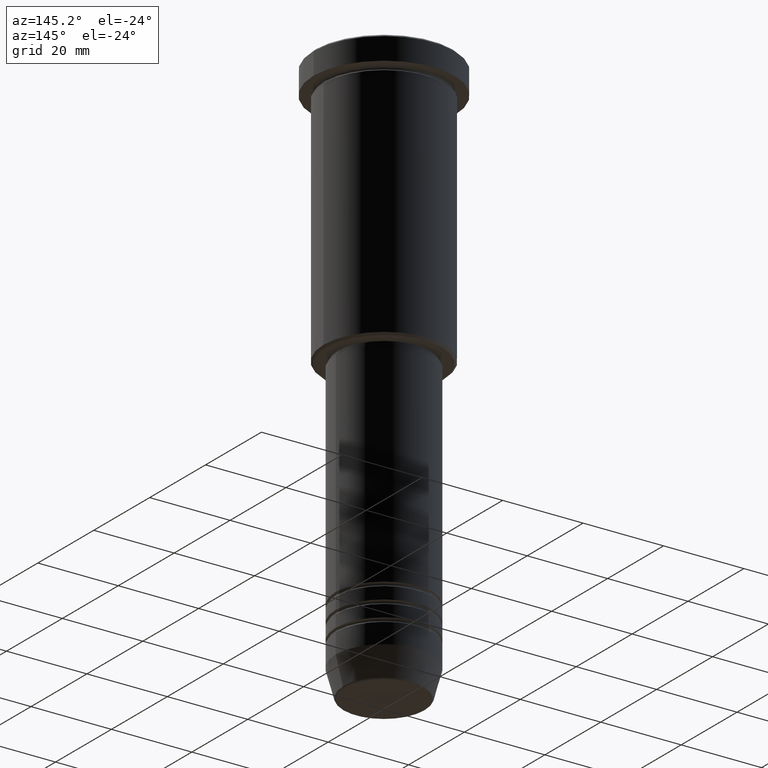
[diagram: clean part render]
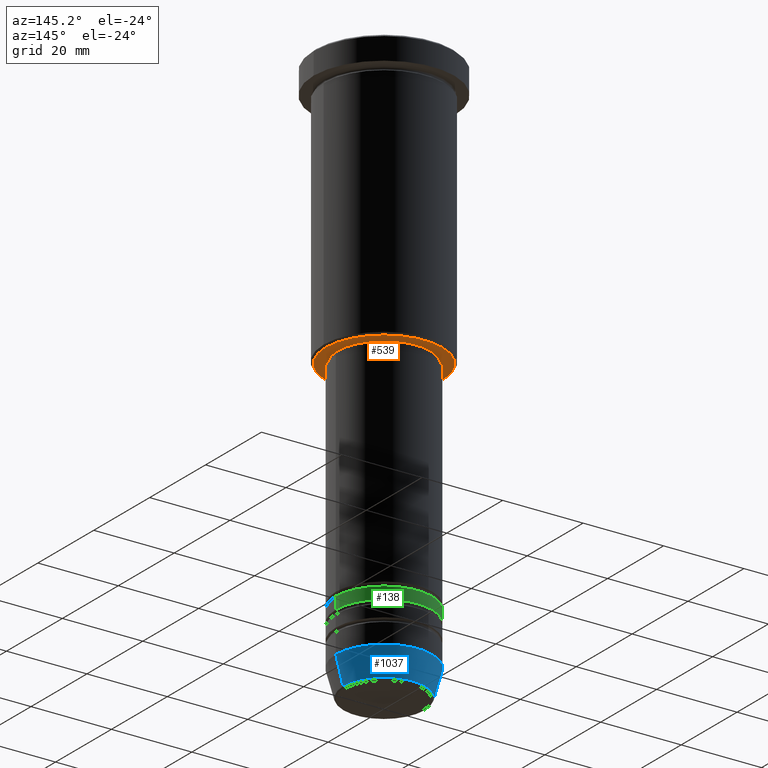
[diagram: same view with three faces highlighted in distinct colors, each labeled with its STEP entity id]
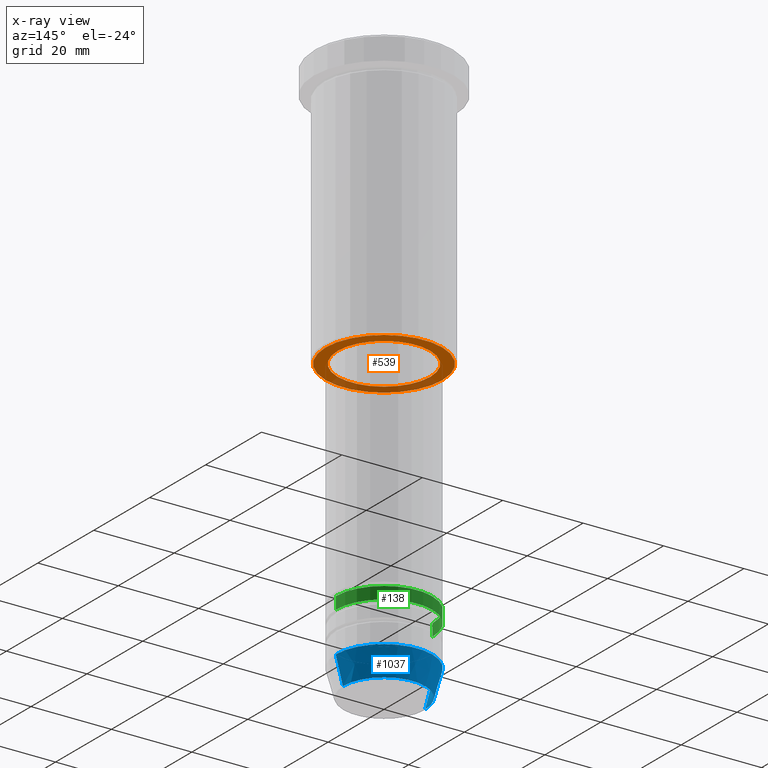
[diagram: x-ray of the same camera — body ghosted, the three highlighted faces saturated]
A machine part, auxiliary view with three faces highlighted in distinct colors.
The next image is the same camera in x-ray (body ghosted, the three faces saturated) — at least one of them is partly hidden behind the body in this view.
Their STEP definitions:

[orange] entity #539 — the highlighted planar face has unit normal (0, 0, -1).
#40 = VERTEX_POINT ( 'NONE', #515 ) ;
#97 = CARTESIAN_POINT ( 'NONE',  ( 0.000000000000000000, 0.000000000000000000, -66.00000000000000000 ) ) ;
#112 = DIRECTION ( 'NONE',  ( -0.000000000000000000, -0.000000000000000000, 1.000000000000000000 ) ) ;
#127 = CARTESIAN_POINT ( 'NONE',  ( 0.000000000000000000, 0.000000000000000000, -66.00000000000000000 ) ) ;
#296 = AXIS2_PLACEMENT_3D ( 'NONE', #1112, #933, #660 ) ;
#314 = DIRECTION ( 'NONE',  ( -1.000000000000000000, 0.000000000000000000, -0.000000000000000000 ) ) ;
#332 = DIRECTION ( 'NONE',  ( 0.000000000000000000, 0.000000000000000000, -1.000000000000000000 ) ) ;
#334 = CARTESIAN_POINT ( 'NONE',  ( -14.49999999999999645, 1.806354028742345802E-15, -66.00000000000000000 ) ) ;
#340 = DIRECTION ( 'NONE',  ( -0.000000000000000000, -0.000000000000000000, 1.000000000000000000 ) ) ;
#349 = ORIENTED_EDGE ( 'NONE', *, *, #939, .T. ) ;
#373 = DIRECTION ( 'NONE',  ( 1.000000000000000000, 0.000000000000000000, 0.000000000000000000 ) ) ;
#401 = ORIENTED_EDGE ( 'NONE', *, *, #461, .T. ) ;
#434 = EDGE_LOOP ( 'NONE', ( #401, #676 ) ) ;
#461 = EDGE_CURVE ( 'NONE', #946, #40, #542, .T. ) ;
#507 = DIRECTION ( 'NONE',  ( 0.000000000000000000, 0.000000000000000000, -1.000000000000000000 ) ) ;
#515 = CARTESIAN_POINT ( 'NONE',  ( -11.50000000000000000, 1.408343819019456176E-15, -66.00000000000000000 ) ) ;
#520 = EDGE_CURVE ( 'NONE', #40, #946, #935, .T. ) ;
#523 = AXIS2_PLACEMENT_3D ( 'NONE', #127, #332, #1128 ) ;
#539 = ADVANCED_FACE ( 'NONE', ( #954, #1133 ), #1144, .T. ) ;
#542 = CIRCLE ( 'NONE', #1104, 11.50000000000000000 ) ;
#600 = EDGE_CURVE ( 'NONE', #1023, #695, #672, .T. ) ;
#643 = CARTESIAN_POINT ( 'NONE',  ( 11.50000000000000000, 0.000000000000000000, -66.00000000000000000 ) ) ;
#660 = DIRECTION ( 'NONE',  ( -1.000000000000000000, 0.000000000000000000, 0.000000000000000000 ) ) ;
#672 = CIRCLE ( 'NONE', #523, 14.49999999999999645 ) ;
#676 = ORIENTED_EDGE ( 'NONE', *, *, #520, .T. ) ;
#678 = CARTESIAN_POINT ( 'NONE',  ( 0.000000000000000000, 15.00000000000000000, -66.00000000000000000 ) ) ;
#686 = CARTESIAN_POINT ( 'NONE',  ( 14.49999999999999645, 0.000000000000000000, -66.00000000000000000 ) ) ;
#695 = VERTEX_POINT ( 'NONE', #686 ) ;
#696 = DIRECTION ( 'NONE',  ( 1.000000000000000000, 0.000000000000000000, 0.000000000000000000 ) ) ;
#730 = CIRCLE ( 'NONE', #296, 14.49999999999999645 ) ;
#800 = ORIENTED_EDGE ( 'NONE', *, *, #600, .T. ) ;
#828 = AXIS2_PLACEMENT_3D ( 'NONE', #1041, #340, #696 ) ;
#863 = AXIS2_PLACEMENT_3D ( 'NONE', #678, #507, #314 ) ;
#933 = DIRECTION ( 'NONE',  ( 0.000000000000000000, 0.000000000000000000, -1.000000000000000000 ) ) ;
#935 = CIRCLE ( 'NONE', #828, 11.50000000000000000 ) ;
#939 = EDGE_CURVE ( 'NONE', #695, #1023, #730, .T. ) ;
#946 = VERTEX_POINT ( 'NONE', #643 ) ;
#954 = FACE_OUTER_BOUND ( 'NONE', #1142, .T. ) ;
#1023 = VERTEX_POINT ( 'NONE', #334 ) ;
#1041 = CARTESIAN_POINT ( 'NONE',  ( 0.000000000000000000, 0.000000000000000000, -66.00000000000000000 ) ) ;
#1104 = AXIS2_PLACEMENT_3D ( 'NONE', #97, #112, #373 ) ;
#1112 = CARTESIAN_POINT ( 'NONE',  ( 0.000000000000000000, 0.000000000000000000, -66.00000000000000000 ) ) ;
#1128 = DIRECTION ( 'NONE',  ( -1.000000000000000000, 0.000000000000000000, 0.000000000000000000 ) ) ;
#1133 = FACE_BOUND ( 'NONE', #434, .T. ) ;
#1142 = EDGE_LOOP ( 'NONE', ( #349, #800 ) ) ;
#1144 = PLANE ( 'NONE',  #863 ) ;

[blue] entity #1037 — the highlighted conical surface has half-angle 15 deg.
#23 = LINE ( 'NONE', #568, #826 ) ;
#62 = DIRECTION ( 'NONE',  ( -0.000000000000000000, -0.000000000000000000, 1.000000000000000000 ) ) ;
#69 = DIRECTION ( 'NONE',  ( 1.000000000000000000, 0.000000000000000000, 0.000000000000000000 ) ) ;
#92 = EDGE_CURVE ( 'NONE', #478, #230, #931, .T. ) ;
#103 = EDGE_CURVE ( 'NONE', #384, #235, #1120, .T. ) ;
#161 = AXIS2_PLACEMENT_3D ( 'NONE', #238, #603, #425 ) ;
#168 = ORIENTED_EDGE ( 'NONE', *, *, #92, .F. ) ;
#230 = VERTEX_POINT ( 'NONE', #639 ) ;
#235 = VERTEX_POINT ( 'NONE', #733 ) ;
#238 = CARTESIAN_POINT ( 'NONE',  ( 0.000000000000000000, 0.000000000000000000, -134.0000000000000000 ) ) ;
#242 = DIRECTION ( 'NONE',  ( 1.000000000000000000, 0.000000000000000000, 0.000000000000000000 ) ) ;
#245 = FACE_OUTER_BOUND ( 'NONE', #247, .T. ) ;
#247 = EDGE_LOOP ( 'NONE', ( #663, #511, #168, #793 ) ) ;
#294 = DIRECTION ( 'NONE',  ( -0.2588190451025213501, 3.169619151431772337E-17, 0.9659258262890680902 ) ) ;
#354 = DIRECTION ( 'NONE',  ( 0.2588190451025213501, 0.000000000000000000, 0.9659258262890680902 ) ) ;
#384 = VERTEX_POINT ( 'NONE', #627 ) ;
#421 = AXIS2_PLACEMENT_3D ( 'NONE', #964, #62, #242 ) ;
#425 = DIRECTION ( 'NONE',  ( 1.000000000000000000, 0.000000000000000000, 0.000000000000000000 ) ) ;
#448 = CARTESIAN_POINT ( 'NONE',  ( 0.000000000000000000, 0.000000000000000000, -134.0000000000000000 ) ) ;
#478 = VERTEX_POINT ( 'NONE', #738 ) ;
#481 = EDGE_CURVE ( 'NONE', #235, #230, #23, .T. ) ;
#511 = ORIENTED_EDGE ( 'NONE', *, *, #481, .T. ) ;
#568 = CARTESIAN_POINT ( 'NONE',  ( -12.00000000000000000, 1.469576158976823947E-15, -134.0000000000000000 ) ) ;
#603 = DIRECTION ( 'NONE',  ( -0.000000000000000000, -0.000000000000000000, 1.000000000000000000 ) ) ;
#627 = CARTESIAN_POINT ( 'NONE',  ( 10.22365507213719127, 0.000000000000000000, -140.6294095225512706 ) ) ;
#639 = CARTESIAN_POINT ( 'NONE',  ( -12.00000000000000000, 1.469576158976823947E-15, -134.0000000000000000 ) ) ;
#663 = ORIENTED_EDGE ( 'NONE', *, *, #103, .T. ) ;
#733 = CARTESIAN_POINT ( 'NONE',  ( -10.22365507213719127, 1.360806402472382744E-15, -140.6294095225512706 ) ) ;
#738 = CARTESIAN_POINT ( 'NONE',  ( 12.00000000000000000, 0.000000000000000000, -134.0000000000000000 ) ) ;
#776 = AXIS2_PLACEMENT_3D ( 'NONE', #448, #1170, #69 ) ;
#793 = ORIENTED_EDGE ( 'NONE', *, *, #837, .F. ) ;
#826 = VECTOR ( 'NONE', #294, 1000.000000000000000 ) ;
#837 = EDGE_CURVE ( 'NONE', #384, #478, #1066, .T. ) ;
#865 = VECTOR ( 'NONE', #354, 1000.000000000000000 ) ;
#900 = CONICAL_SURFACE ( 'NONE', #161, 12.00000000000000000, 0.2617993877991500740 ) ;
#931 = CIRCLE ( 'NONE', #776, 12.00000000000000000 ) ;
#964 = CARTESIAN_POINT ( 'NONE',  ( 0.000000000000000000, 0.000000000000000000, -140.6294095225512706 ) ) ;
#977 = CARTESIAN_POINT ( 'NONE',  ( 12.00000000000000000, 0.000000000000000000, -134.0000000000000000 ) ) ;
#1037 = ADVANCED_FACE ( 'NONE', ( #245 ), #900, .T. ) ;
#1066 = LINE ( 'NONE', #977, #865 ) ;
#1120 = CIRCLE ( 'NONE', #421, 10.22365507213719127 ) ;
#1170 = DIRECTION ( 'NONE',  ( -0.000000000000000000, -0.000000000000000000, 1.000000000000000000 ) ) ;

[green] entity #138 — the highlighted cylindrical surface (partial cylindrical patch) has radius 12 mm, axis along (-0, -0, 1).
#25 = ORIENTED_EDGE ( 'NONE', *, *, #86, .F. ) ;
#43 = LINE ( 'NONE', #674, #653 ) ;
#86 = EDGE_CURVE ( 'NONE', #605, #1126, #548, .T. ) ;
#135 = VECTOR ( 'NONE', #509, 1000.000000000000000 ) ;
#138 = ADVANCED_FACE ( 'NONE', ( #969 ), #1068, .T. ) ;
#142 = CARTESIAN_POINT ( 'NONE',  ( 12.00000000000000178, 0.000000000000000000, 0.000000000000000000 ) ) ;
#157 = DIRECTION ( 'NONE',  ( -0.000000000000000000, -0.000000000000000000, 1.000000000000000000 ) ) ;
#197 = CIRCLE ( 'NONE', #859, 12.00000000000000355 ) ;
#199 = DIRECTION ( 'NONE',  ( -0.000000000000000000, -0.000000000000000000, 1.000000000000000000 ) ) ;
#301 = ORIENTED_EDGE ( 'NONE', *, *, #704, .F. ) ;
#329 = DIRECTION ( 'NONE',  ( -0.000000000000000000, -0.000000000000000000, 1.000000000000000000 ) ) ;
#347 = CARTESIAN_POINT ( 'NONE',  ( -12.00000000000000533, 1.469576158976824539E-15, -123.9999999999999147 ) ) ;
#426 = EDGE_CURVE ( 'NONE', #839, #836, #197, .T. ) ;
#509 = DIRECTION ( 'NONE',  ( -0.000000000000000000, -0.000000000000000000, 1.000000000000000000 ) ) ;
#524 = DIRECTION ( 'NONE',  ( 1.000000000000000000, 0.000000000000000000, 0.000000000000000000 ) ) ;
#546 = ORIENTED_EDGE ( 'NONE', *, *, #1073, .T. ) ;
#548 = CIRCLE ( 'NONE', #694, 12.00000000000000000 ) ;
#582 = ORIENTED_EDGE ( 'NONE', *, *, #426, .T. ) ;
#604 = DIRECTION ( 'NONE',  ( -0.000000000000000000, -0.000000000000000000, 1.000000000000000000 ) ) ;
#605 = VERTEX_POINT ( 'NONE', #1047 ) ;
#632 = CARTESIAN_POINT ( 'NONE',  ( 12.00000000000000355, 0.000000000000000000, -123.9999999999999147 ) ) ;
#653 = VECTOR ( 'NONE', #329, 1000.000000000000000 ) ;
#674 = CARTESIAN_POINT ( 'NONE',  ( -12.00000000000000178, 1.469576158976824144E-15, 0.000000000000000000 ) ) ;
#693 = CARTESIAN_POINT ( 'NONE',  ( 0.000000000000000000, 0.000000000000000000, -120.9999999999999005 ) ) ;
#694 = AXIS2_PLACEMENT_3D ( 'NONE', #693, #604, #978 ) ;
#704 = EDGE_CURVE ( 'NONE', #839, #605, #1050, .T. ) ;
#729 = EDGE_LOOP ( 'NONE', ( #582, #546, #25, #301 ) ) ;
#836 = VERTEX_POINT ( 'NONE', #347 ) ;
#839 = VERTEX_POINT ( 'NONE', #632 ) ;
#859 = AXIS2_PLACEMENT_3D ( 'NONE', #1111, #199, #1015 ) ;
#948 = CARTESIAN_POINT ( 'NONE',  ( -12.00000000000000000, 1.469576158976824144E-15, -120.9999999999999005 ) ) ;
#969 = FACE_OUTER_BOUND ( 'NONE', #729, .T. ) ;
#978 = DIRECTION ( 'NONE',  ( 1.000000000000000000, 0.000000000000000000, 0.000000000000000000 ) ) ;
#985 = CARTESIAN_POINT ( 'NONE',  ( 0.000000000000000000, 0.000000000000000000, 0.000000000000000000 ) ) ;
#1015 = DIRECTION ( 'NONE',  ( 1.000000000000000000, 0.000000000000000000, 0.000000000000000000 ) ) ;
#1027 = AXIS2_PLACEMENT_3D ( 'NONE', #985, #157, #524 ) ;
#1047 = CARTESIAN_POINT ( 'NONE',  ( 12.00000000000000000, 0.000000000000000000, -120.9999999999999005 ) ) ;
#1050 = LINE ( 'NONE', #142, #135 ) ;
#1068 = CYLINDRICAL_SURFACE ( 'NONE', #1027, 12.00000000000000178 ) ;
#1073 = EDGE_CURVE ( 'NONE', #836, #1126, #43, .T. ) ;
#1111 = CARTESIAN_POINT ( 'NONE',  ( 0.000000000000000000, 0.000000000000000000, -123.9999999999999147 ) ) ;
#1126 = VERTEX_POINT ( 'NONE', #948 ) ;